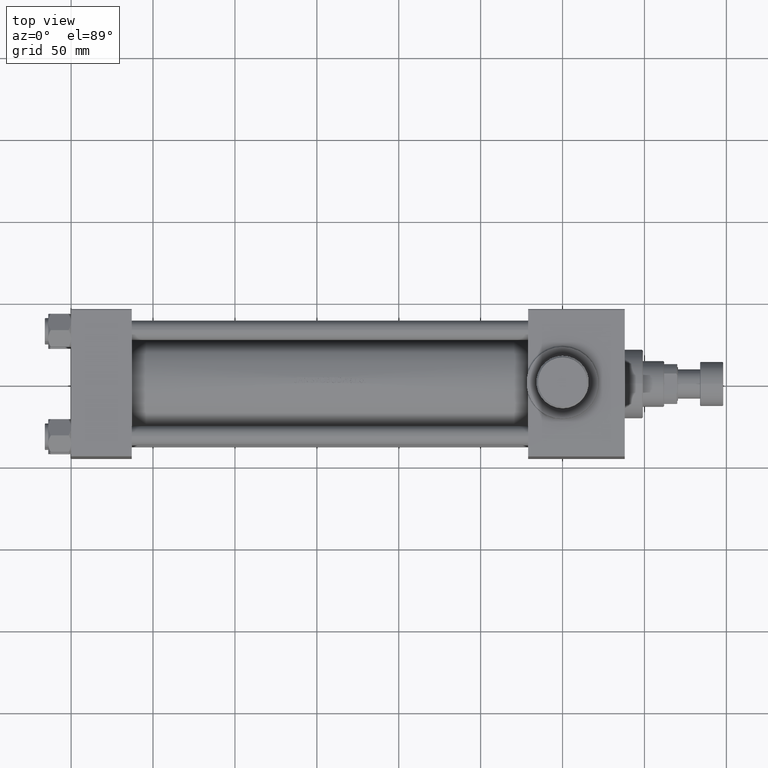
[diagram: clean part render]
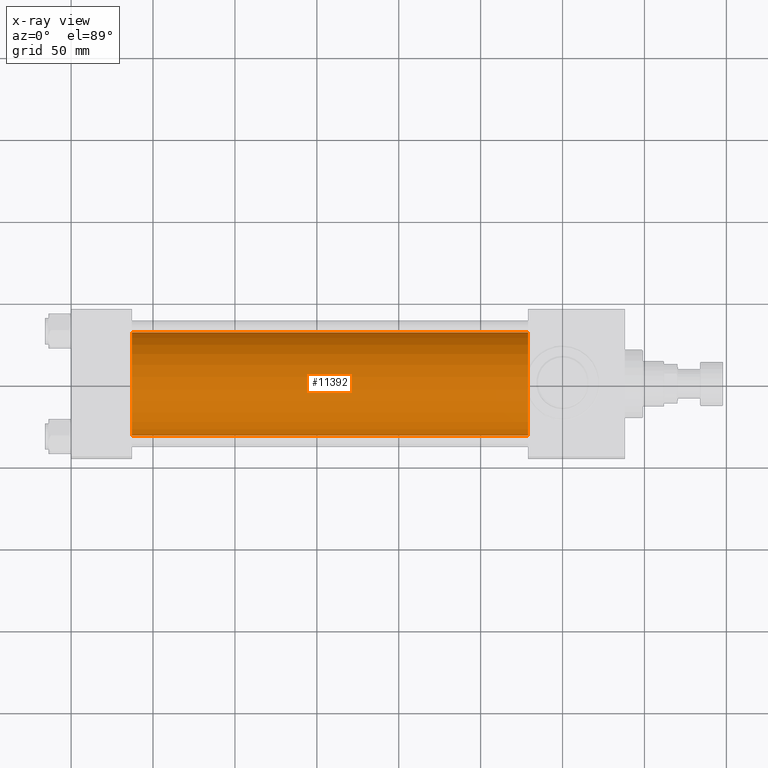
[diagram: x-ray — body ghosted, one internal face saturated and labeled with its STEP entity id]
A machine part, top view, then the same camera in x-ray: the body is ghosted and one INTERNAL B-rep face — a face not visible from any outside direction — is saturated and labeled: STEP entity #11392.
In plain terms, the highlighted cylindrical surface (partial cylindrical patch) has radius 31.5 mm, axis along (-1, -0, 0).
Its self-contained STEP definition (entity closure, byte-faithful):
#687 = EDGE_CURVE ( 'NONE', #21705, #31885, #9326, .T. ) ;
#1343 = VECTOR ( 'NONE', #38360, 1000.000000000000000 ) ;
#2159 = EDGE_LOOP ( 'NONE', ( #19626, #10099, #33661, #5158 ) ) ;
#4780 = CARTESIAN_POINT ( 'NONE',  ( 37.00000000000000000, 3.881904653605483521E-16, -31.50000000000000000 ) ) ;
#5158 = ORIENTED_EDGE ( 'NONE', *, *, #687, .F. ) ;
#6250 = CARTESIAN_POINT ( 'NONE',  ( 37.00000000000000000, -3.469446951953614189E-15, 31.50000000000000000 ) ) ;
#6283 = LINE ( 'NONE', #42685, #32365 ) ;
#7254 = CARTESIAN_POINT ( 'NONE',  ( 278.9999999999999432, -3.469446951953614189E-15, 0.000000000000000000 ) ) ;
#7674 = EDGE_CURVE ( 'NONE', #20843, #10427, #6283, .T. ) ;
#9083 = EDGE_CURVE ( 'NONE', #21705, #20843, #19421, .T. ) ;
#9326 = LINE ( 'NONE', #27421, #1343 ) ;
#10099 = ORIENTED_EDGE ( 'NONE', *, *, #7674, .T. ) ;
#10427 = VERTEX_POINT ( 'NONE', #4780 ) ;
#11340 = DIRECTION ( 'NONE',  ( 1.000000000000000000, 0.000000000000000000, 0.000000000000000000 ) ) ;
#11392 = ADVANCED_FACE ( 'NONE', ( #47016 ), #39864, .F. ) ;
#12202 = DIRECTION ( 'NONE',  ( 0.000000000000000000, 0.000000000000000000, -1.000000000000000000 ) ) ;
#13459 = CARTESIAN_POINT ( 'NONE',  ( 278.9999999999999432, -3.469446951953614189E-15, 31.50000000000000000 ) ) ;
#14644 = DIRECTION ( 'NONE',  ( 0.000000000000000000, 0.000000000000000000, 1.000000000000000000 ) ) ;
#14893 = CARTESIAN_POINT ( 'NONE',  ( 278.9999999999999432, -3.469446951953614189E-15, 0.000000000000000000 ) ) ;
#18208 = DIRECTION ( 'NONE',  ( -1.000000000000000000, -0.000000000000000000, -0.000000000000000000 ) ) ;
#19421 = CIRCLE ( 'NONE', #21740, 31.50000000000000000 ) ;
#19626 = ORIENTED_EDGE ( 'NONE', *, *, #9083, .T. ) ;
#20843 = VERTEX_POINT ( 'NONE', #27860 ) ;
#21705 = VERTEX_POINT ( 'NONE', #13459 ) ;
#21740 = AXIS2_PLACEMENT_3D ( 'NONE', #14893, #11340, #40362 ) ;
#24121 = AXIS2_PLACEMENT_3D ( 'NONE', #7254, #18208, #14644 ) ;
#27421 = CARTESIAN_POINT ( 'NONE',  ( 278.9999999999999432, -3.469446951953614189E-15, 31.50000000000000000 ) ) ;
#27718 = DIRECTION ( 'NONE',  ( -1.000000000000000000, -0.000000000000000000, -0.000000000000000000 ) ) ;
#27860 = CARTESIAN_POINT ( 'NONE',  ( 278.9999999999999432, 3.881904653605483521E-16, -31.50000000000000000 ) ) ;
#31885 = VERTEX_POINT ( 'NONE', #6250 ) ;
#32365 = VECTOR ( 'NONE', #27718, 1000.000000000000000 ) ;
#33661 = ORIENTED_EDGE ( 'NONE', *, *, #36627, .F. ) ;
#34712 = CIRCLE ( 'NONE', #35464, 31.50000000000000000 ) ;
#35464 = AXIS2_PLACEMENT_3D ( 'NONE', #45268, #41456, #12202 ) ;
#36627 = EDGE_CURVE ( 'NONE', #31885, #10427, #34712, .T. ) ;
#38360 = DIRECTION ( 'NONE',  ( -1.000000000000000000, -0.000000000000000000, -0.000000000000000000 ) ) ;
#39864 = CYLINDRICAL_SURFACE ( 'NONE', #24121, 31.50000000000000000 ) ;
#40362 = DIRECTION ( 'NONE',  ( 0.000000000000000000, 0.000000000000000000, -1.000000000000000000 ) ) ;
#41456 = DIRECTION ( 'NONE',  ( 1.000000000000000000, 0.000000000000000000, 0.000000000000000000 ) ) ;
#42685 = CARTESIAN_POINT ( 'NONE',  ( 278.9999999999999432, 3.881904653605483521E-16, -31.50000000000000000 ) ) ;
#45268 = CARTESIAN_POINT ( 'NONE',  ( 37.00000000000000000, -3.469446951953614189E-15, 0.000000000000000000 ) ) ;
#47016 = FACE_OUTER_BOUND ( 'NONE', #2159, .T. ) ;